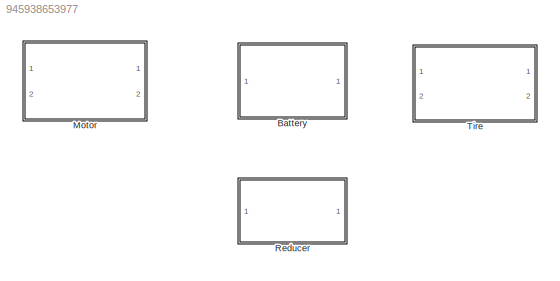
MODEL slx_945938653977
KIND library
CONFIG AbsTol = auto
CONFIG EnableMultiTasking = off
CONFIG FixedStep = auto
CONFIG MaxStep = auto
CONFIG MinStep = auto
CONFIG RelTol = 1e-3
CONFIG SampleTimeConstraint = Unconstrained
CONFIG SolverName = VariableStepAuto
CONFIG StartTime = 0.0
CONFIG StopTime = 10.0
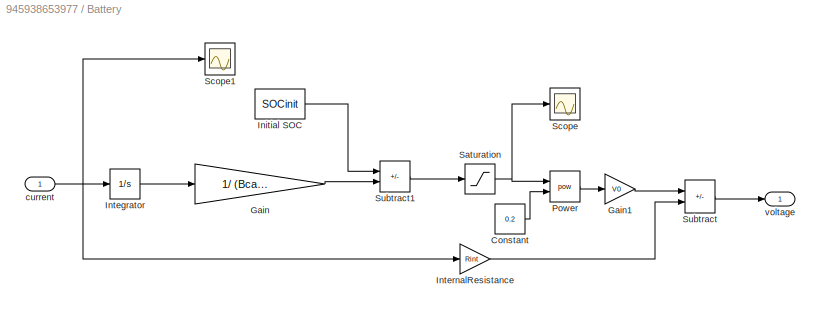
BLOCK [SubSystem] Battery
  Ports = [1, 1]
  RequestExecContextInheritance = off
BLOCK [Constant] Battery/Constant
  Value = 0.2
BLOCK [Gain] Battery/Gain
  Gain = 1/ (Bcapacity*3600)
BLOCK [Gain] Battery/Gain1
  Gain = V0
BLOCK [Constant] Battery/Initial SOC
  Value = SOCinit
BLOCK [Integrator] Battery/Integrator
  Ports = [1, 1]
BLOCK [Gain] Battery/InternalResistance
  Gain = Rint
BLOCK [Math] Battery/Power
  Operator = pow
  Ports = [2, 1]
BLOCK [Saturate] Battery/Saturation
  LowerLimit = 0
  UpperLimit = 1
BLOCK [Scope] Battery/Scope
  Floating = off
  NumInputPorts = 1
  Ports = [1]
  ScopeSpecificationString = Simulink.scopes.TimeScopeBlockCfg('CurrentConfiguration', extmgr.ConfigurationSet(extmgr.Configuration('Core','General UI',true),extmgr.Configuration('Core','Source UI',true),extmgr.Configuration('Sources','WiredSimulink',true,'DataLoggingVariableName','ScopeData2'),extmgr.Configuration('Visuals','Time Domain',true,'SerializedDisplays',{struct('MinYLimReal','-0.0875','MaxYLimReal','0.7875','YLabel...<+1393ch>
BLOCK [Scope] Battery/Scope1
  Floating = off
  NumInputPorts = 1
  Ports = [1]
  ScopeSpecificationString = Simulink.scopes.TimeScopeBlockCfg('CurrentConfiguration', extmgr.ConfigurationSet(extmgr.Configuration('Core','General UI',true),extmgr.Configuration('Core','Source UI',true),extmgr.Configuration('Sources','WiredSimulink',true,'DataLoggingVariableName','ScopeData3'),extmgr.Configuration('Visuals','Time Domain',true,'SerializedDisplays',{struct('MinYLimReal','-6.18318','MaxYLimReal','55.64866','YLa...<+1389ch>
BLOCK [Sum] Battery/Subtract
  IconShape = rectangular
  Inputs = +-
  Ports = [2, 1]
BLOCK [Sum] Battery/Subtract1
  IconShape = rectangular
  Inputs = +-
  Ports = [2, 1]
BLOCK [Inport] Battery/current
BLOCK [Outport] Battery/voltage
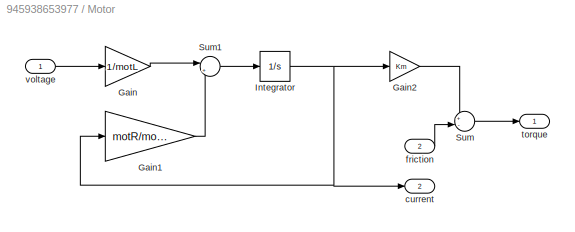
BLOCK [SubSystem] Motor
  Ports = [2, 2]
  RequestExecContextInheritance = off
BLOCK [Gain] Motor/Gain
  Gain = 1/motL
BLOCK [Gain] Motor/Gain1
  Gain = motR/motL
BLOCK [Gain] Motor/Gain2
  Gain = Km
BLOCK [Integrator] Motor/Integrator
  Ports = [1, 1]
BLOCK [Sum] Motor/Sum
  Inputs = +-
  Ports = [2, 1]
BLOCK [Sum] Motor/Sum1
  Inputs = |+-
  Ports = [2, 1]
BLOCK [Outport] Motor/current
  Port = 2
BLOCK [Inport] Motor/friction
  Port = 2
BLOCK [Outport] Motor/torque
BLOCK [Inport] Motor/voltage
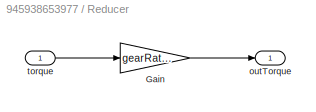
BLOCK [SubSystem] Reducer
  Ports = [1, 1]
  RequestExecContextInheritance = off
BLOCK [Gain] Reducer/Gain
  Gain = gearRatio
BLOCK [Outport] Reducer/outTorque
BLOCK [Inport] Reducer/torque
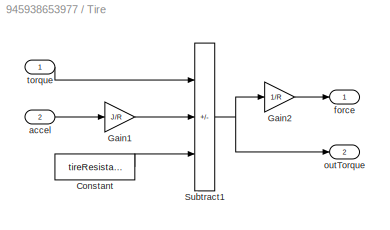
BLOCK [SubSystem] Tire
  Ports = [2, 2]
  RequestExecContextInheritance = off
BLOCK [Constant] Tire/Constant
  Value = tireResistance
BLOCK [Gain] Tire/Gain1
  Gain = J/R
BLOCK [Gain] Tire/Gain2
  Gain = 1/R
BLOCK [Sum] Tire/Subtract1
  IconShape = rectangular
  Inputs = +--
  Ports = [3, 1]
BLOCK [Inport] Tire/accel
  Port = 2
BLOCK [Outport] Tire/force
BLOCK [Outport] Tire/outTorque
  Port = 2
BLOCK [Inport] Tire/torque
LINE Battery/Constant:1 -> Battery/Power:2
LINE Battery/Gain1:1 -> Battery/Subtract:1
LINE Battery/Gain:1 -> Battery/Subtract1:2
LINE Battery/Initial SOC:1 -> Battery/Subtract1:1
LINE Battery/Integrator:1 -> Battery/Gain:1
LINE Battery/InternalResistance:1 -> Battery/Subtract:2
LINE Battery/Power:1 -> Battery/Gain1:1
NET Battery/Saturation:1 -> Battery/Power:1, Battery/Scope:1
LINE Battery/Subtract1:1 -> Battery/Saturation:1
LINE Battery/Subtract:1 -> Battery/voltage:1
NET Battery/current:1 -> Battery/Integrator:1, Battery/InternalResistance:1, Battery/Scope1:1
LINE Motor/Gain1:1 -> Motor/Sum1:2
LINE Motor/Gain2:1 -> Motor/Sum:1
LINE Motor/Gain:1 -> Motor/Sum1:1
NET Motor/Integrator:1 -> Motor/Gain1:1, Motor/Gain2:1, Motor/current:1
LINE Motor/Sum1:1 -> Motor/Integrator:1
LINE Motor/Sum:1 -> Motor/torque:1
LINE Motor/friction:1 -> Motor/Sum:2
LINE Motor/voltage:1 -> Motor/Gain:1
LINE Reducer/Gain:1 -> Reducer/outTorque:1
LINE Reducer/torque:1 -> Reducer/Gain:1
LINE Tire/Constant:1 -> Tire/Subtract1:3
LINE Tire/Gain1:1 -> Tire/Subtract1:2
LINE Tire/Gain2:1 -> Tire/force:1
NET Tire/Subtract1:1 -> Tire/Gain2:1, Tire/outTorque:1
LINE Tire/accel:1 -> Tire/Gain1:1
LINE Tire/torque:1 -> Tire/Subtract1:1
note: NET lines group one-source signal fan-out (src -> all destinations, sorted); 1:1 wires keep LINE
